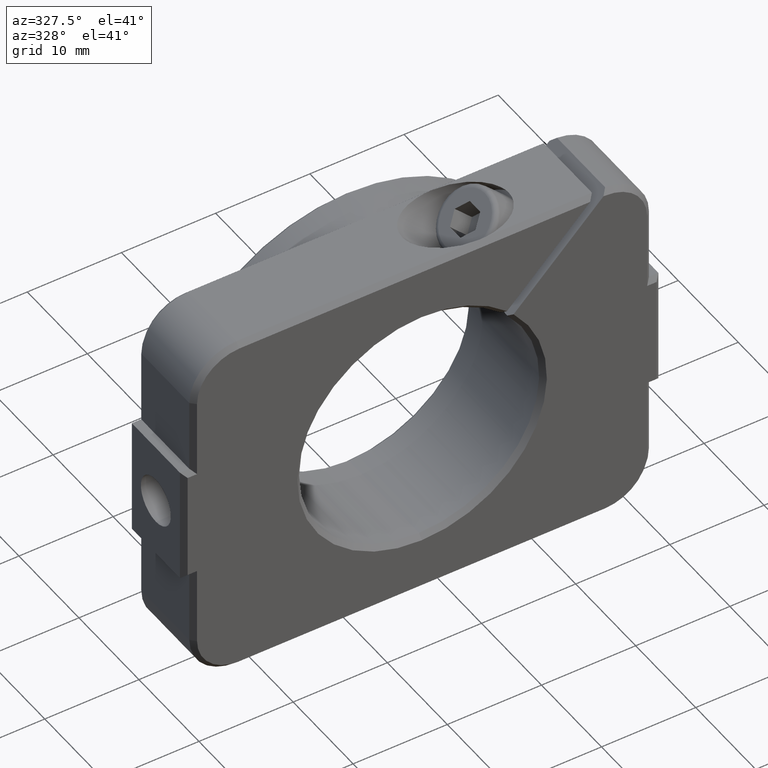
[diagram: clean part render]
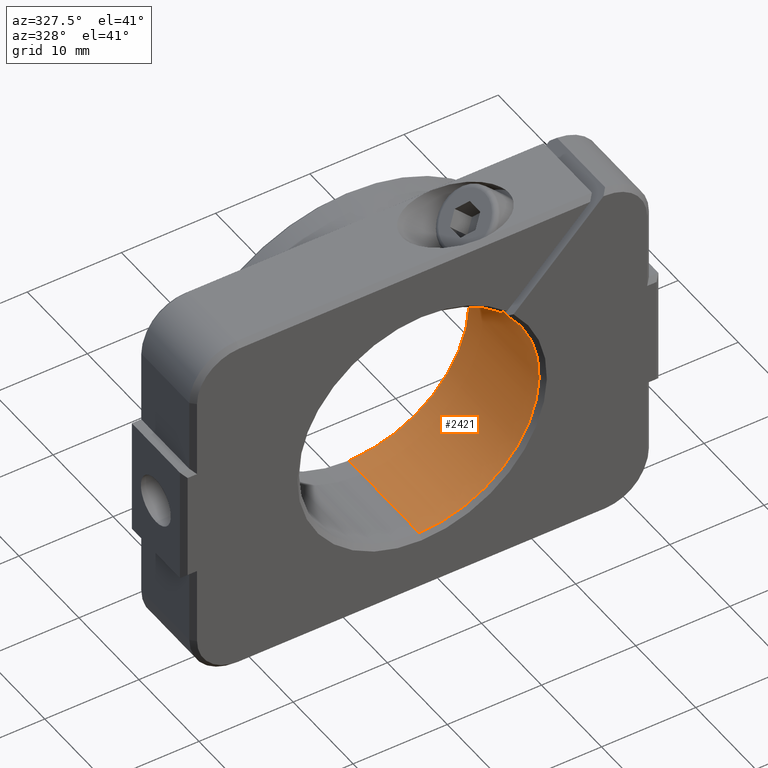
[diagram: same view with one face highlighted and labeled with its STEP entity id]
A machine part, auxiliary view. The second image highlights one B-rep face of the part: STEP entity #2421.
In plain terms, the highlighted cylindrical surface (partial cylindrical patch) has radius 12.75 mm, axis along (-0, -1, -0).
Its self-contained STEP definition (entity closure, byte-faithful):
#24 = CARTESIAN_POINT ( 'NONE',  ( -2.583785812802642700, -3.653782059117402200, 38.04999999999999700 ) ) ;
#34 = AXIS2_PLACEMENT_3D ( 'NONE', #881, #2619, #2655 ) ;
#114 = AXIS2_PLACEMENT_3D ( 'NONE', #601, #1686, #2506 ) ;
#299 = EDGE_LOOP ( 'NONE', ( #2303, #434, #2497, #1957 ) ) ;
#305 = VERTEX_POINT ( 'NONE', #542 ) ;
#434 = ORIENTED_EDGE ( 'NONE', *, *, #476, .T. ) ;
#467 = DIRECTION ( 'NONE',  ( 0.0000000000000000000, 0.0000000000000000000, 1.000000000000000000 ) ) ;
#476 = EDGE_CURVE ( 'NONE', #807, #1696, #848, .T. ) ;
#542 = CARTESIAN_POINT ( 'NONE',  ( 6.778443951154237400, 8.046217940882595300, 59.45512298277036200 ) ) ;
#601 = CARTESIAN_POINT ( 'NONE',  ( -2.583785812802642700, 8.546217940882606000, 50.79999999999999700 ) ) ;
#677 = DIRECTION ( 'NONE',  ( -0.0000000000000000000, -1.000000000000000000, -0.0000000000000000000 ) ) ;
#762 = DIRECTION ( 'NONE',  ( -0.0000000000000000000, -1.000000000000000000, -0.0000000000000000000 ) ) ;
#807 = VERTEX_POINT ( 'NONE', #2082 ) ;
#848 = LINE ( 'NONE', #1438, #917 ) ;
#881 = CARTESIAN_POINT ( 'NONE',  ( -2.583785812802642700, -3.653782059117402200, 50.79999999999999700 ) ) ;
#917 = VECTOR ( 'NONE', #762, 1000.000000000000000 ) ;
#1124 = DIRECTION ( 'NONE',  ( -0.0000000000000000000, 1.000000000000000000, -0.0000000000000000000 ) ) ;
#1301 = LINE ( 'NONE', #1794, #1912 ) ;
#1438 = CARTESIAN_POINT ( 'NONE',  ( -2.583785812802642700, 8.546217940882606000, 38.04999999999999700 ) ) ;
#1464 = EDGE_CURVE ( 'NONE', #305, #1477, #1301, .T. ) ;
#1477 = VERTEX_POINT ( 'NONE', #1614 ) ;
#1614 = CARTESIAN_POINT ( 'NONE',  ( 6.778443951154237400, -3.653782059117402200, 59.45512298277036200 ) ) ;
#1686 = DIRECTION ( 'NONE',  ( -0.0000000000000000000, -1.000000000000000000, -0.0000000000000000000 ) ) ;
#1696 = VERTEX_POINT ( 'NONE', #24 ) ;
#1794 = CARTESIAN_POINT ( 'NONE',  ( 6.778443951154237400, 8.546217940882606000, 59.45512298277036200 ) ) ;
#1912 = VECTOR ( 'NONE', #677, 1000.000000000000000 ) ;
#1949 = CYLINDRICAL_SURFACE ( 'NONE', #114, 12.74999999999999800 ) ;
#1957 = ORIENTED_EDGE ( 'NONE', *, *, #1464, .F. ) ;
#1993 = AXIS2_PLACEMENT_3D ( 'NONE', #2235, #1124, #467 ) ;
#2075 = EDGE_CURVE ( 'NONE', #1696, #1477, #2335, .T. ) ;
#2082 = CARTESIAN_POINT ( 'NONE',  ( -2.583785812802641000, 8.046217940882595300, 38.04999999999999700 ) ) ;
#2235 = CARTESIAN_POINT ( 'NONE',  ( -2.583785812802642700, 8.046217940882595300, 50.79999999999999700 ) ) ;
#2262 = CIRCLE ( 'NONE', #1993, 12.74999999999999800 ) ;
#2303 = ORIENTED_EDGE ( 'NONE', *, *, #2513, .T. ) ;
#2335 = CIRCLE ( 'NONE', #34, 12.74999999999999800 ) ;
#2421 = ADVANCED_FACE ( 'NONE', ( #2761 ), #1949, .F. ) ;
#2497 = ORIENTED_EDGE ( 'NONE', *, *, #2075, .T. ) ;
#2506 = DIRECTION ( 'NONE',  ( 0.0000000000000000000, 0.0000000000000000000, -1.000000000000000000 ) ) ;
#2513 = EDGE_CURVE ( 'NONE', #305, #807, #2262, .T. ) ;
#2619 = DIRECTION ( 'NONE',  ( 0.0000000000000000000, -1.000000000000000000, 0.0000000000000000000 ) ) ;
#2655 = DIRECTION ( 'NONE',  ( -8.843688308901370600E-016, 0.0000000000000000000, 1.000000000000000000 ) ) ;
#2761 = FACE_OUTER_BOUND ( 'NONE', #299, .T. ) ;